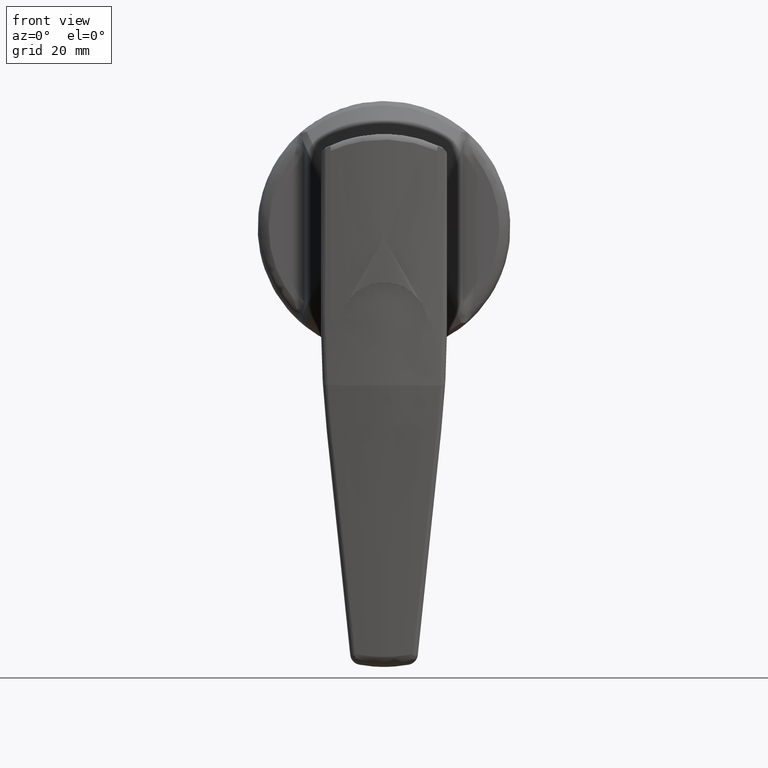
[diagram: clean part render]
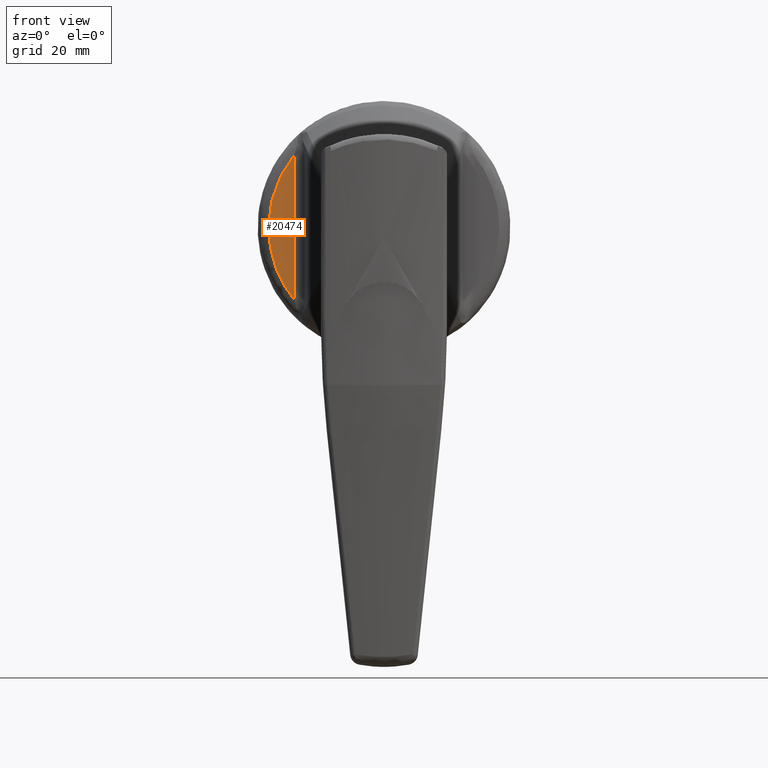
[diagram: same view with one face highlighted and labeled with its STEP entity id]
A machine part, front view. The second image highlights one B-rep face of the part: STEP entity #20474.
In plain terms, the highlighted face is a freeform B-spline surface patch.
Its self-contained STEP definition (entity closure, byte-faithful):
#18673=CARTESIAN_POINT('',(-4.499999999999860,16.304739585055049,13.234631353518640));
#18674=VERTEX_POINT('',#18673);
#18734=CARTESIAN_POINT('',(-4.499999999999860,16.304739585055049,-13.234631353518640));
#18735=VERTEX_POINT('',#18734);
#18757=CARTESIAN_POINT('',(-4.499999999999860,16.304739585055049,-13.234631353518640));
#18758=CARTESIAN_POINT('',(-4.499999999999860,16.304739585055049,13.234631353518640));
#18759=QUASI_UNIFORM_CURVE('',1,(#18757,#18758),.UNSPECIFIED.,.F.,.U.);
#18760=EDGE_CURVE('',#18735,#18674,#18759,.T.);
#20299=CARTESIAN_POINT('',(-4.499999999999860,16.304739585055060,13.234631353518640));
#20300=CARTESIAN_POINT('',(-4.499999999999860,27.047350109425917,0.0));
#20301=CARTESIAN_POINT('',(-4.499999999999860,16.304739585055060,-13.234631353518640));
#20309=(BOUNDED_CURVE()B_SPLINE_CURVE(2,(#20299,#20300,#20301),.UNSPECIFIED.,.F.,.U.)CURVE()GEOMETRIC_REPRESENTATION_ITEM()QUASI_UNIFORM_CURVE()RATIONAL_B_SPLINE_CURVE((1.0,0.776416170716907,1.0))REPRESENTATION_ITEM(''));
#20310=EDGE_CURVE('',#18674,#18735,#20309,.T.);
#20465=CARTESIAN_POINT('',(-4.499999999999860,16.070210719368450,-14.556771222907081));
#20466=CARTESIAN_POINT('',(-4.499999999999860,16.070210719368450,14.556771696214390));
#20467=CARTESIAN_POINT('',(-4.499999999999860,21.234528403918478,-14.556771222907081));
#20468=CARTESIAN_POINT('',(-4.499999999999860,21.234528403918478,14.556771696214390));
#20469=B_SPLINE_SURFACE_WITH_KNOTS('',1,1,((#20465,#20467),(#20466,#20468)),.UNSPECIFIED.,.F.,.F.,.U.,(2,2),(2,2),(0.0,29.113542919121471),(0.0,5.164317684550021),.UNSPECIFIED.);
#20470=ORIENTED_EDGE('',*,*,#20310,.T.);
#20471=ORIENTED_EDGE('',*,*,#18760,.T.);
#20472=EDGE_LOOP('',(#20470,#20471));
#20473=FACE_OUTER_BOUND('',#20472,.T.);
#20474=ADVANCED_FACE('',(#20473),#20469,.T.);